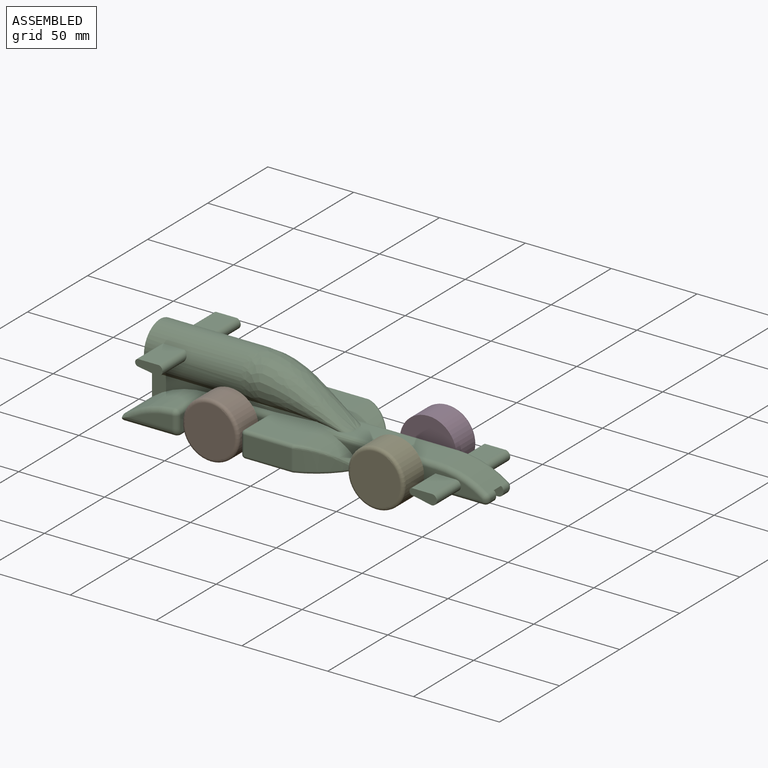
[diagram: assembled view]
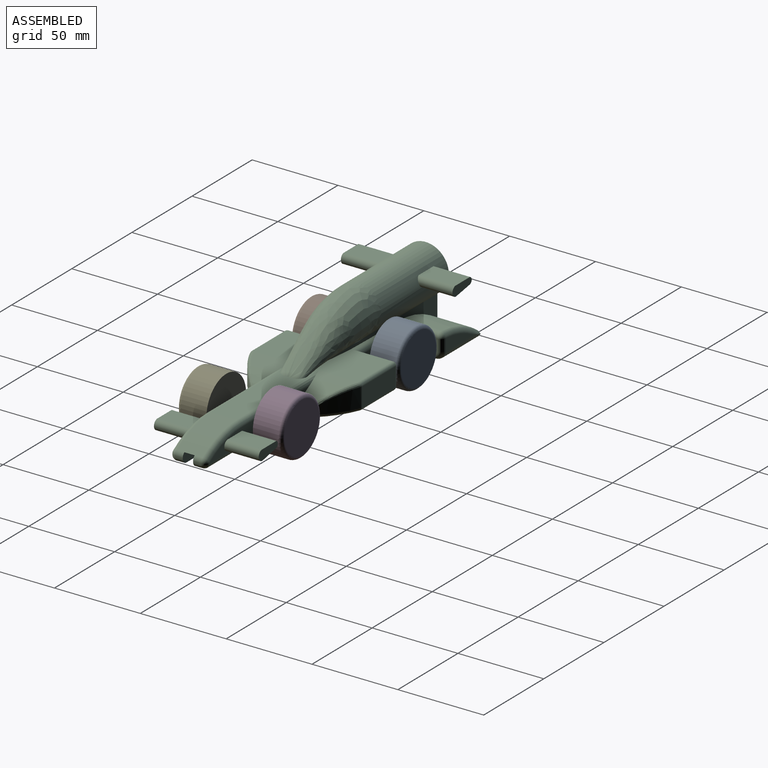
[diagram: assembled view, second angle]
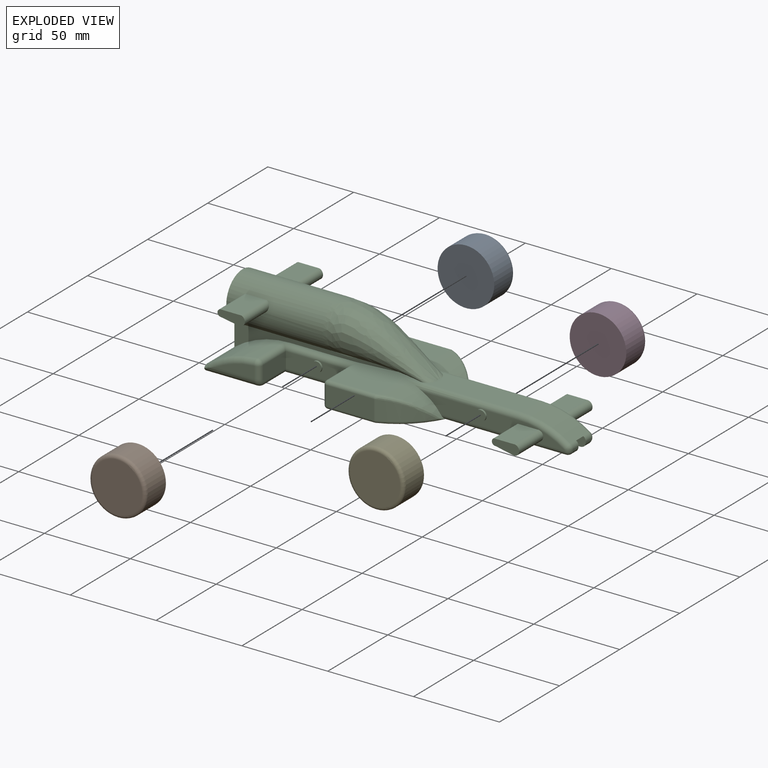
[diagram: exploded view]
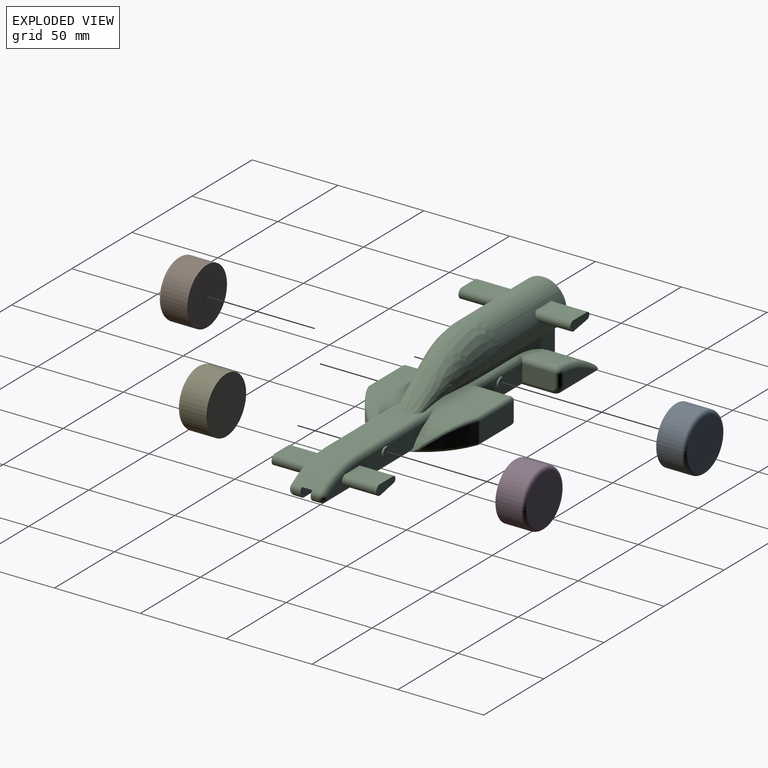
[diagram: exploded view, second angle]
ASSEMBLY  parts=5 mates=4
PART A: 4 faces, bbox 35.7x17x35.7 mm
  f0: cylinder r=16.5mm len=33mm, axis (0,1,0), area 1555.1mm2, adj f2,f3
  f1: plane 29x29mm, normal (0,-1,0), area 660.5mm2, adj f3
  f2: plane 33x33mm, normal (0,1,0), area 855.3mm2, adj f0
  f3: torus R=14.5mm, axis (0,-1,0), area 311.4mm2, adj f0,f1
PART B: same geometry as A
PART C: 127 faces, bbox 202.8x72.5x44.7 mm
  f0: plane 194.81x27.5mm, normal (0,0,-1), area 2458.4mm2, adj f6,f18,f23,f37,f38,f47,f48,f52
  f1: plane 4.5x0.47mm, normal (1,0,0), area 2.1mm2, adj f38,f40,f41,f61
  f2: plane 82.5x9mm, normal (0,1,0), area 511.5mm2, adj f25,f26,f27,f28,f35,f37,f40,f43
  f3: plane 135.23x61mm, normal (0,0,1), area 2366.2mm2, adj f10,f12,f13,f14,f35,f36,f44,f45
  f4: cylinder r=47.9mm len=22.74mm, axis (0,0,-1), area 217.8mm2, adj f55,f57,f58,f60
  f5: plane 19x8.91mm, normal (1,0,0), area 168.5mm2, adj f7,f18,f19,f20,f24
  f6: plane 64.22x42.92mm, normal (-1,0,0), area 668.7mm2, adj f0,f10,f11,f14,f15,f22,f23,f61
  f7: plane 37.07x9mm, normal (0,1,0), area 305.3mm2, adj f5,f17,f20,f45,f46,f47,f63
  f8: plane 27.56x11mm, normal (0,1,0), area 303.2mm2, adj f51,f52,f56,f57
  f9: plane 22.85x6.91mm, normal (0,1,0), area 101.5mm2, adj f19,f22,f23
  f10: plane 56x13.19mm, normal (0,1,0), area 242.3mm2, adj f3,f6,f11,f12,f14
  f11: cylinder r=13.5mm len=56mm, axis (-1,0,0), area 3808.1mm2, adj f6,f10,f13,f30,f32,f33,f34,f75
  f12: bspline ~47.99x3.73mm, area 73.3mm2, adj f3,f10,f13
  f13: bspline ~58.41x27.5mm, area 1554.9mm2, adj f3,f11,f12,f77
  f14: cylinder r=54.24mm len=32.59mm, axis (0,1,0), area 725.3mm2, adj f3,f6,f10,f20,f22,f46
  f15: cylinder r=9.5mm len=52mm, axis (-1,0,0), area 3103.9mm2, adj f6,f16
  f16: plane 19x19mm, normal (-1,0,0), area 283.5mm2, adj f15
  f17: plane 20.17x11mm, normal (-1,0,0), area 220.1mm2, adj f7,f45,f47,f48,f50,f51
  f18: cylinder r=3mm len=20mm, axis (0,1,0), area 87.2mm2, adj f0,f5,f24,f47
  f19: cylinder r=3mm len=6.91mm, axis (0,0,1), area 32.6mm2, adj f5,f9,f21,f24
  f20: cylinder r=3mm len=22mm, axis (0,1,0), area 98.1mm2, adj f5,f7,f14,f21,f46
  f21: sphere r=3mm, area 14.7mm2, adj f19,f20,f22
  f22: torus R=51.24mm, axis (0,-1,0), area 143.1mm2, adj f6,f9,f14,f21,f23
  f23: cylinder r=5mm len=29.59mm, axis (-1,0,0), area 224mm2, adj f0,f6,f9,f22,f24
  f24: torus R=2mm, axis (1,0,0), area 28.9mm2, adj f5,f18,f19,f23
  f25: cylinder r=2mm len=20mm, axis (0,-1,0), area 113.9mm2, adj f2,f26,f28,f29
  f26: plane 20x11.25mm, normal (0,0,1), area 225.1mm2, adj f2,f25,f27,f29
  f27: cylinder r=3mm len=20mm, axis (0,-1,0), area 209.6mm2, adj f2,f26,f28,f29
  f28: plane 20x10.15mm, normal (-0.2,0,-0.98), area 207.2mm2, adj f2,f25,f27,f29
  f29: plane 15.94x6mm, normal (0,1,0), area 74.1mm2, adj f25,f26,f27,f28
  f30: cylinder r=3mm len=21.23mm, axis (0,1,0), area 168.6mm2, adj f11,f31,f32,f33
  f31: plane 16x5.86mm, normal (0,1,0), area 74.4mm2, adj f30,f32,f33,f34
  f32: plane 21.23x12.23mm, normal (0,0,1), area 259.6mm2, adj f11,f30,f31,f34
  f33: plane 19.54x11.55mm, normal (-0.16,0,-0.99), area 224mm2, adj f11,f30,f31,f34
  f34: cylinder r=2mm len=21.23mm, axis (0,1,0), area 114.4mm2, adj f11,f31,f32,f33
  f35: cylinder r=28.23mm len=24.76mm, axis (0,1,0), area 349.1mm2, adj f2,f3,f37,f44,f55,f58
  f36: cylinder r=50mm len=28.72mm, axis (0,1,0), area 458.2mm2, adj f3,f41,f43,f61,f62,f102,f104,f122
  f37: cylinder r=3mm len=72.07mm, axis (-1,0,0), area 334.9mm2, adj f0,f2,f35,f39,f55
  f38: cylinder r=3mm len=4.5mm, axis (0,1,0), area 21.2mm2, adj f0,f1,f39,f61
  f39: sphere r=3mm, area 9mm2, adj f37,f38,f40
  f40: cylinder r=3mm len=3mm, axis (0,0,1), area 2.2mm2, adj f1,f2,f39,f42
  f41: cylinder r=3mm len=4.5mm, axis (0,1,0), area 12.9mm2, adj f1,f36,f42,f61
  f42: sphere r=3mm, area 6.3mm2, adj f40,f41,f43
  f43: torus R=47mm, axis (0,1,0), area 141mm2, adj f2,f36,f42,f44
  f44: cylinder r=3mm len=68.16mm, axis (1,0,0), area 291.4mm2, adj f2,f3,f35,f43
  f45: cylinder r=3mm len=39.06mm, axis (1,0,0), area 178.4mm2, adj f3,f7,f17,f46,f50
  f46: torus R=51.24mm, axis (0,1,0), area 5.5mm2, adj f7,f14,f20,f45
  f47: cylinder r=3mm len=42.06mm, axis (-1,0,0), area 183.5mm2, adj f0,f7,f17,f18,f48
  f48: cylinder r=2mm len=23mm, axis (0,-1,0), area 67.8mm2, adj f0,f17,f47,f49
  f49: sphere r=2mm, area 8.6mm2, adj f48,f51,f52
  f50: cylinder r=2mm len=23mm, axis (0,1,0), area 67.8mm2, adj f3,f17,f45,f53
  f51: cylinder r=2mm len=11mm, axis (0,0,-1), area 34.6mm2, adj f8,f17,f49,f53
  f52: cylinder r=2mm len=27.56mm, axis (-1,0,0), area 86.6mm2, adj f0,f8,f49,f54
  f53: sphere r=2mm, area 8.6mm2, adj f50,f51,f56
  f54: sphere r=2mm, area 1.5mm2, adj f52,f55,f57
  f55: torus R=45.9mm, axis (0,0,1), area 104mm2, adj f0,f4,f35,f37,f54,f58
  f56: cylinder r=2mm len=27.56mm, axis (1,0,0), area 86.6mm2, adj f3,f8,f53,f59
  f57: cylinder r=2mm len=11mm, axis (0,0,-1), area 8.2mm2, adj f4,f8,f54,f59
  f58: bspline ~28.32x24.51mm, area 82.7mm2, adj f4,f35,f55,f60
  f59: sphere r=2mm, area 1.5mm2, adj f56,f57,f60
  f60: torus R=45.9mm, axis (0,0,1), area 1.5mm2, adj f3,f4,f58,f59
  f61: plane 197.81x6mm, normal (0,-1,0), area 1183.9mm2, adj f0,f1,f6,f36,f38,f41,f62
  f62: plane 196.43x6mm, normal (0,0,-1), area 1178.6mm2, adj f6,f36,f61,f122
  f63: cylinder r=3mm len=6mm, axis (0,-1,0), area 18.8mm2, adj f7,f64
  f64: plane 6x6mm, normal (0,1,0), area 28.3mm2, adj f63
  f65: cylinder r=3mm len=6mm, axis (0,-1,0), area 18.8mm2, adj f2,f66
  f66: plane 6x6mm, normal (0,1,0), area 28.3mm2, adj f65
  f67: plane 194.81x27.5mm, normal (0,0,-1), area 2458.4mm2, adj f6,f80,f85,f98,f99,f108,f109,f113
  f68: plane 4.5x0.47mm, normal (1,0,0), area 2.1mm2, adj f99,f101,f102,f122
  f69: plane 82.5x9mm, normal (0,-1,0), area 511.5mm2, adj f87,f88,f89,f90,f97,f98,f101,f104
  f70: cylinder r=47.9mm len=22.74mm, axis (0,0,-1), area 217.8mm2, adj f116,f118,f119,f121
  f71: plane 19x8.91mm, normal (1,0,0), area 168.5mm2, adj f72,f80,f81,f82,f86
  f72: plane 37.07x9mm, normal (0,-1,0), area 305.3mm2, adj f71,f79,f82,f106,f107,f108,f123
  f73: plane 27.56x11mm, normal (0,-1,0), area 303.2mm2, adj f112,f113,f117,f118
  f74: plane 22.85x6.91mm, normal (0,-1,0), area 101.5mm2, adj f81,f84,f85
  f75: plane 56x13.19mm, normal (0,-1,0), area 242.3mm2, adj f3,f6,f11,f76,f78
  f76: bspline ~47.99x3.73mm, area 73.3mm2, adj f3,f75,f77
  f77: bspline ~58.41x27.5mm, area 1554.9mm2, adj f3,f11,f13,f76
  f78: cylinder r=54.24mm len=32.59mm, axis (0,-1,0), area 725.3mm2, adj f3,f6,f75,f82,f84,f107
  f79: plane 20.17x11mm, normal (-1,0,0), area 220.1mm2, adj f72,f106,f108,f109,f111,f112
  f80: cylinder r=3mm len=20mm, axis (0,-1,0), area 87.2mm2, adj f67,f71,f86,f108
  f81: cylinder r=3mm len=6.91mm, axis (0,0,1), area 32.6mm2, adj f71,f74,f83,f86
  f82: cylinder r=3mm len=22mm, axis (0,-1,0), area 98.1mm2, adj f71,f72,f78,f83,f107
  f83: sphere r=3mm, area 14.7mm2, adj f81,f82,f84
  f84: torus R=51.24mm, axis (0,1,0), area 143.1mm2, adj f6,f74,f78,f83,f85
  f85: cylinder r=5mm len=29.59mm, axis (-1,0,0), area 224mm2, adj f6,f67,f74,f84,f86
  f86: torus R=2mm, axis (1,0,0), area 28.9mm2, adj f71,f80,f81,f85
  f87: cylinder r=2mm len=20mm, axis (0,1,0), area 113.9mm2, adj f69,f88,f90,f91
  f88: plane 20x11.25mm, normal (0,0,1), area 225.1mm2, adj f69,f87,f89,f91
  f89: cylinder r=3mm len=20mm, axis (0,1,0), area 209.6mm2, adj f69,f88,f90,f91
  f90: plane 20x10.15mm, normal (-0.2,0,-0.98), area 207.2mm2, adj f69,f87,f89,f91
  f91: plane 15.94x6mm, normal (0,-1,0), area 74.1mm2, adj f87,f88,f89,f90
  f92: cylinder r=3mm len=21.23mm, axis (0,-1,0), area 168.6mm2, adj f11,f93,f94,f95
  f93: plane 16x5.86mm, normal (0,-1,0), area 74.4mm2, adj f92,f94,f95,f96
  f94: plane 21.23x12.23mm, normal (0,0,1), area 259.6mm2, adj f11,f92,f93,f96
  f95: plane 19.54x11.55mm, normal (-0.16,0,-0.99), area 224mm2, adj f11,f92,f93,f96
  f96: cylinder r=2mm len=21.23mm, axis (0,-1,0), area 114.4mm2, adj f11,f93,f94,f95
  f97: cylinder r=28.23mm len=24.76mm, axis (0,-1,0), area 349.1mm2, adj f3,f69,f98,f105,f116,f119
  f98: cylinder r=3mm len=72.07mm, axis (-1,0,0), area 334.9mm2, adj f67,f69,f97,f100,f116
  f99: cylinder r=3mm len=4.5mm, axis (0,-1,0), area 21.2mm2, adj f67,f68,f100,f122
  f100: sphere r=3mm, area 14.1mm2, adj f98,f99,f101
  f101: cylinder r=3mm len=3mm, axis (0,0,1), area 2.2mm2, adj f68,f69,f100,f103
  f102: cylinder r=3mm len=4.5mm, axis (0,-1,0), area 12.9mm2, adj f36,f68,f103,f122
  f103: sphere r=3mm, area 8.6mm2, adj f101,f102,f104
  f104: torus R=47mm, axis (0,-1,0), area 141mm2, adj f36,f69,f103,f105
  f105: cylinder r=3mm len=68.16mm, axis (1,0,0), area 291.4mm2, adj f3,f69,f97,f104
  f106: cylinder r=3mm len=39.06mm, axis (1,0,0), area 178.4mm2, adj f3,f72,f79,f107,f111
  f107: torus R=51.24mm, axis (0,-1,0), area 5.5mm2, adj f72,f78,f82,f106
  f108: cylinder r=3mm len=42.06mm, axis (-1,0,0), area 183.5mm2, adj f67,f72,f79,f80,f109
  f109: cylinder r=2mm len=23mm, axis (0,1,0), area 67.8mm2, adj f67,f79,f108,f110
  f110: sphere r=2mm, area 6.3mm2, adj f109,f112,f113
  f111: cylinder r=2mm len=23mm, axis (0,-1,0), area 67.8mm2, adj f3,f79,f106,f114
  f112: cylinder r=2mm len=11mm, axis (0,0,-1), area 34.6mm2, adj f73,f79,f110,f114
  f113: cylinder r=2mm len=27.56mm, axis (-1,0,0), area 86.6mm2, adj f67,f73,f110,f115
  f114: sphere r=2mm, area 6.3mm2, adj f111,f112,f117
  f115: sphere r=2mm, area 1.5mm2, adj f113,f116,f118
  f116: torus R=45.9mm, axis (0,0,1), area 104mm2, adj f67,f70,f97,f98,f115,f119
  f117: cylinder r=2mm len=27.56mm, axis (1,0,0), area 86.6mm2, adj f3,f73,f114,f120
  f118: cylinder r=2mm len=11mm, axis (0,0,-1), area 8.2mm2, adj f70,f73,f115,f120
  f119: bspline ~28.32x24.51mm, area 82.7mm2, adj f70,f97,f116,f121
  f120: sphere r=2mm, area 1.5mm2, adj f117,f118,f121
  f121: torus R=45.9mm, axis (0,0,1), area 1.5mm2, adj f3,f70,f119,f120
  f122: plane 197.81x6mm, normal (0,1,0), area 1183.9mm2, adj f6,f36,f62,f67,f68,f99,f102
  f123: cylinder r=3mm len=6mm, axis (0,1,0), area 18.8mm2, adj f72,f124
  f124: plane 6x6mm, normal (0,-1,0), area 28.3mm2, adj f123
  f125: cylinder r=3mm len=6mm, axis (0,1,0), area 18.8mm2, adj f69,f126
  f126: plane 6x6mm, normal (0,-1,0), area 28.3mm2, adj f125
PART D: same geometry as A
PART E: same geometry as A
PLACE A rot(axis=(1,0,0),180deg) t=(-27.17,-99.03,-64.48)mm
PLACE B t=(-27.17,-128.03,-64.48)mm fixed
PLACE C t=(-78.17,-113.53,-73.48)mm
PLACE D rot(axis=(1,0,0),180deg) t=(68.47,-100.03,-64.48)mm
PLACE E rot(axis=(0,-1,0),0deg) t=(68.47,-127.03,-64.48)mm
MATE revolute A.f0 <-> C.f123  axis (0,-1,0) through (-27.17,-99.03,-64.48)mm
MATE revolute E.f0 <-> C.f125  axis (0,1,0) through (68.47,-127.03,-64.48)mm
MATE revolute D.f0 <-> C.f65  axis (0,-1,0) through (68.47,-100.03,-64.48)mm
MATE revolute B.f0 <-> C.f63  axis (0,1,0) through (-27.17,-128.03,-64.48)mm
